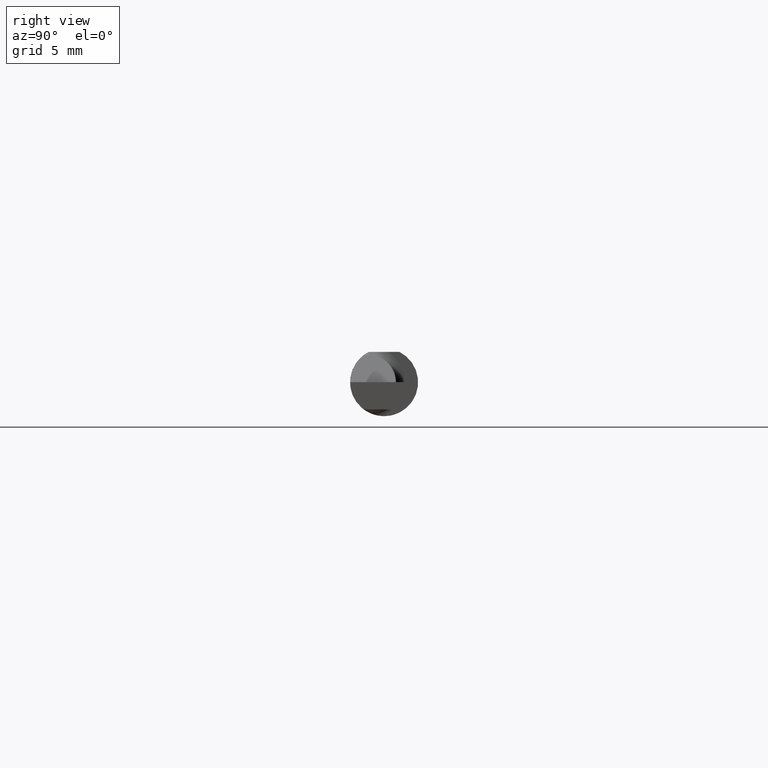
[diagram: clean part render]
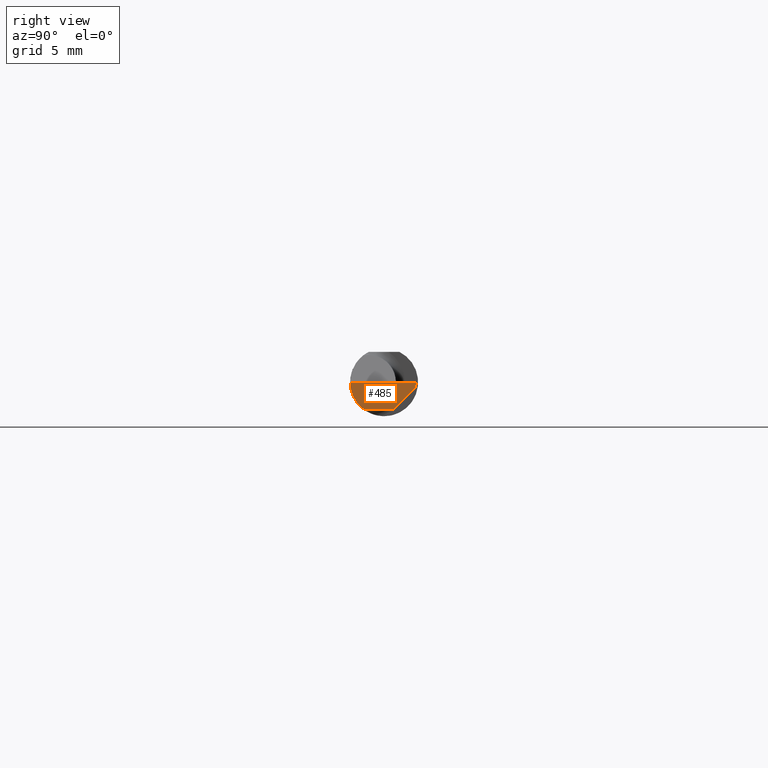
[diagram: same view with one face highlighted and labeled with its STEP entity id]
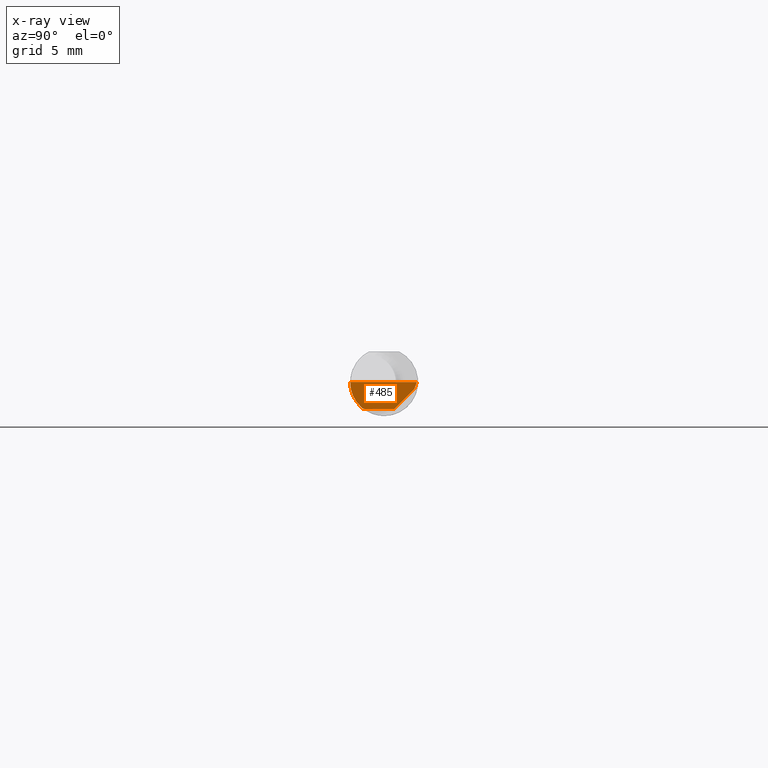
[diagram: x-ray of the same camera — body ghosted, the highlighted face saturated]
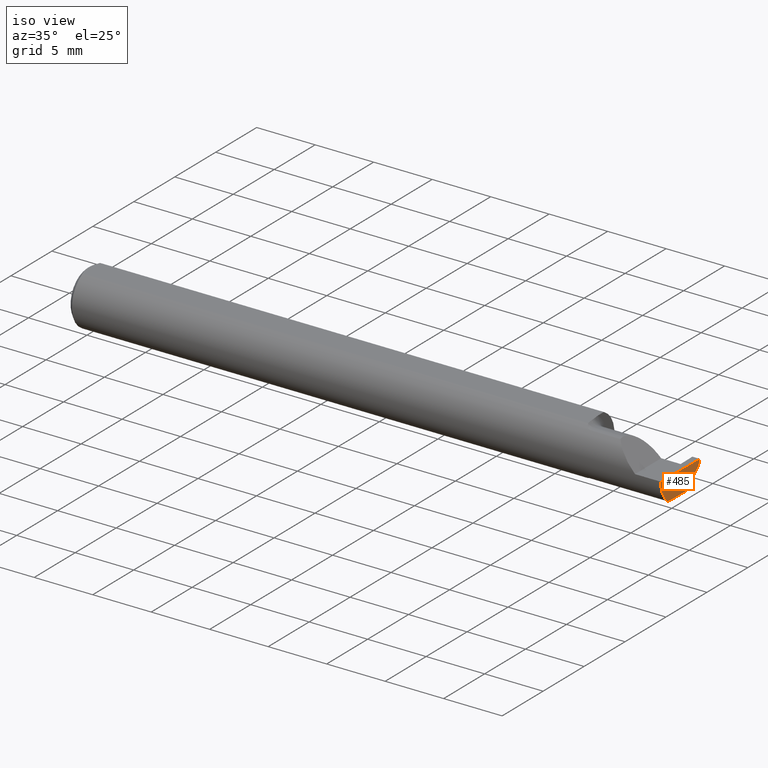
[diagram: same view with one face highlighted and labeled with its STEP entity id]
A machine part, right view. The second image highlights one B-rep face of the part: STEP entity #485.
The next image is the same camera in x-ray: the body ghosted, the highlighted face saturated — about 0% of this face is hidden behind the body in this view.
A second angle (iso view) of the same face is appended — the face is thin or edge-on in the first view.
In plain terms, the highlighted planar face has unit normal (-0.9995, 0.0174, 0.0262).
Its self-contained STEP definition (entity closure, byte-faithful):
#7 = DIRECTION ( 'NONE',  ( -0.03084274406794415904, -0.7067703747110382073, -0.7067703747110356538 ) ) ;
#8 = CARTESIAN_POINT ( 'NONE',  ( 1.999381723781206155, 0.08348456554894213844, -0.01899999999999999953 ) ) ;
#14 = EDGE_CURVE ( 'NONE', #164, #586, #388, .T. ) ;
#17 = CARTESIAN_POINT ( 'NONE',  ( 1.996937940439960535, 0.02748456554894196727, -0.07499999999999998335 ) ) ;
#20 = LINE ( 'NONE', #561, #680 ) ;
#81 = VERTEX_POINT ( 'NONE', #8 ) ;
#82 = CARTESIAN_POINT ( 'NONE',  ( 1.999287184445666554, 0.08131816941191073733, -0.02116639613703140757 ) ) ;
#83 =( BOUNDED_CURVE ( )  B_SPLINE_CURVE ( 3, ( #259, #672, #566, #498 ),
 .UNSPECIFIED., .F., .T. ) 
 B_SPLINE_CURVE_WITH_KNOTS ( ( 4, 4 ),
 ( 0.08204942185700569990, 0.9826237902196914842 ),
 .UNSPECIFIED. ) 
 CURVE ( )  GEOMETRIC_REPRESENTATION_ITEM ( )  RATIONAL_B_SPLINE_CURVE ( ( 1.000000000000000000, 0.9335481000009943076, 0.9335481000009943076, 1.000000000000000000 ) ) 
 REPRESENTATION_ITEM ( '' )  );
#135 = EDGE_CURVE ( 'NONE', #582, #160, #170, .T. ) ;
#160 = VERTEX_POINT ( 'NONE', #562 ) ;
#164 = VERTEX_POINT ( 'NONE', #255 ) ;
#169 = DIRECTION ( 'NONE',  ( -0.9995051766793262571, 0.01744044634007060890, 0.02617694830739122902 ) ) ;
#170 = LINE ( 'NONE', #774, #718 ) ;
#197 = CARTESIAN_POINT ( 'NONE',  ( 1.996788249052547259, -0.09359999022555408332, -4.277588313355801215E-05 ) ) ;
#200 = DIRECTION ( 'NONE',  ( 0.01744642479411314534, 0.9998477995484629233, -2.135106780035503491E-18 ) ) ;
#201 = VERTEX_POINT ( 'NONE', #17 ) ;
#225 = DIRECTION ( 'NONE',  ( -0.03056411404777943305, -0.3418603543644915810, -0.9392536042231929283 ) ) ;
#242 = EDGE_CURVE ( 'NONE', #164, #582, #83, .T. ) ;
#255 = CARTESIAN_POINT ( 'NONE',  ( 1.995486889784650053, -0.05810704225352111146, -0.07337936794867826185 ) ) ;
#257 = EDGE_CURVE ( 'NONE', #160, #732, #434, .T. ) ;
#259 = CARTESIAN_POINT ( 'NONE',  ( 1.995486889784650053, -0.05810704225352111146, -0.07337936794867826185 ) ) ;
#261 = DIRECTION ( 'NONE',  ( -0.01744642479411313493, -0.9998477995484629233, 3.463134274570152404E-16 ) ) ;
#263 = AXIS2_PLACEMENT_3D ( 'NONE', #426, #169, #364 ) ;
#311 = ORIENTED_EDGE ( 'NONE', *, *, #620, .F. ) ;
#312 = LINE ( 'NONE', #82, #589 ) ;
#332 = ORIENTED_EDGE ( 'NONE', *, *, #135, .F. ) ;
#337 = ORIENTED_EDGE ( 'NONE', *, *, #257, .F. ) ;
#341 = CARTESIAN_POINT ( 'NONE',  ( 1.995715029210241243, -0.04259999999999997816, -0.07499999999999998335 ) ) ;
#343 = CARTESIAN_POINT ( 'NONE',  ( 2.000000000000000444, 0.09040000000000000813, 6.269377719834979509E-17 ) ) ;
#345 = CARTESIAN_POINT ( 'NONE',  ( 1.995486889784650053, -0.05810704225352111146, -0.07337936794867826185 ) ) ;
#364 = DIRECTION ( 'NONE',  ( 0.02618093032612054880, 0.000000000000000000, 0.9996572206948033390 ) ) ;
#368 = VECTOR ( 'NONE', #225, 39.37007874015748143 ) ;
#369 = CARTESIAN_POINT ( 'NONE',  ( 1.995715029210241243, -0.04259999999999997816, -0.07499999999999998335 ) ) ;
#388 =( BOUNDED_CURVE ( )  B_SPLINE_CURVE ( 3, ( #345, #637, #531, #341 ),
 .UNSPECIFIED., .F., .T. ) 
 B_SPLINE_CURVE_WITH_KNOTS ( ( 4, 4 ),
 ( 0.3794527164476053094, 0.5877155292608622350 ),
 .UNSPECIFIED. ) 
 CURVE ( )  GEOMETRIC_REPRESENTATION_ITEM ( )  RATIONAL_B_SPLINE_CURVE ( ( 1.000000000000000000, 0.9963888149483995926, 0.9963888149483995926, 1.000000000000000000 ) ) 
 REPRESENTATION_ITEM ( '' )  );
#420 = ORIENTED_EDGE ( 'NONE', *, *, #711, .F. ) ;
#426 = CARTESIAN_POINT ( 'NONE',  ( 1.997382703856816155, 0.09044568507411562819, -0.09996573249755577595 ) ) ;
#434 = LINE ( 'NONE', #683, #626 ) ;
#472 = ORIENTED_EDGE ( 'NONE', *, *, #518, .F. ) ;
#478 = DIRECTION ( 'NONE',  ( 0.02617296143184117893, -0.0004568507411563394447, 0.9996573249755575929 ) ) ;
#480 = PLANE ( 'NONE',  #263 ) ;
#485 = ADVANCED_FACE ( 'NONE', ( #486 ), #480, .F. ) ;
#486 = FACE_OUTER_BOUND ( 'NONE', #591, .T. ) ;
#495 = ORIENTED_EDGE ( 'NONE', *, *, #14, .T. ) ;
#498 = CARTESIAN_POINT ( 'NONE',  ( 1.996788249052547259, -0.09359999022555408332, -4.277588313355801215E-05 ) ) ;
#518 = EDGE_CURVE ( 'NONE', #732, #81, #662, .T. ) ;
#531 = CARTESIAN_POINT ( 'NONE',  ( 1.995624014772495514, -0.04781600192481524209, -0.07499999999999999722 ) ) ;
#561 = CARTESIAN_POINT ( 'NONE',  ( 1.997436282896842163, 0.05604437736224970185, -0.07500000000000002498 ) ) ;
#562 = CARTESIAN_POINT ( 'NONE',  ( 1.996789369178486373, -0.09359999999634724399, 1.965990811775635199E-19 ) ) ;
#566 = CARTESIAN_POINT ( 'NONE',  ( 1.996026586675631709, -0.09358669535931166128, -0.02913391928411207185 ) ) ;
#582 = VERTEX_POINT ( 'NONE', #197 ) ;
#586 = VERTEX_POINT ( 'NONE', #369 ) ;
#589 = VECTOR ( 'NONE', #7, 39.37007874015748854 ) ;
#591 = EDGE_LOOP ( 'NONE', ( #495, #420, #311, #472, #337, #332, #728 ) ) ;
#620 = EDGE_CURVE ( 'NONE', #81, #201, #312, .T. ) ;
#626 = VECTOR ( 'NONE', #200, 39.37007874015748143 ) ;
#637 = CARTESIAN_POINT ( 'NONE',  ( 1.995547692684113805, -0.05300374992736055918, -0.07445783144524571739 ) ) ;
#662 = LINE ( 'NONE', #717, #368 ) ;
#672 = CARTESIAN_POINT ( 'NONE',  ( 1.995561922431087876, -0.08091355869144019330, -0.05531953381055035313 ) ) ;
#680 = VECTOR ( 'NONE', #261, 39.37007874015748143 ) ;
#683 = CARTESIAN_POINT ( 'NONE',  ( 1.996678706298551376, -0.09994204647866641866, 4.067411700507134861E-19 ) ) ;
#711 = EDGE_CURVE ( 'NONE', #201, #586, #20, .T. ) ;
#717 = CARTESIAN_POINT ( 'NONE',  ( 1.999906583493247680, 0.08935513411407894346, -0.002870745427926564477 ) ) ;
#718 = VECTOR ( 'NONE', #478, 39.37007874015748854 ) ;
#728 = ORIENTED_EDGE ( 'NONE', *, *, #242, .F. ) ;
#732 = VERTEX_POINT ( 'NONE', #343 ) ;
#774 = CARTESIAN_POINT ( 'NONE',  ( 1.994172072281005237, -0.09355431490906530867, -0.09996576130738771271 ) ) ;